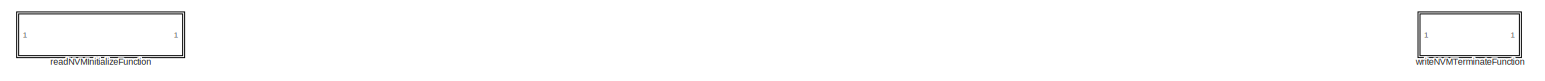
[diagram: root canvas - part 1/4, full width, top band]
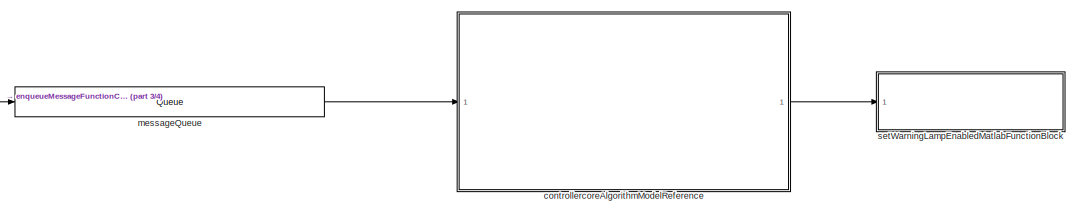
[diagram: root canvas - part 2/4, middle right region]
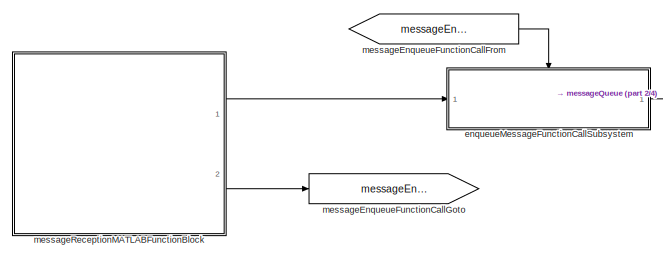
[diagram: root canvas - part 3/4, middle left region]
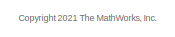
[diagram: root canvas - part 4/4, bottom center region]
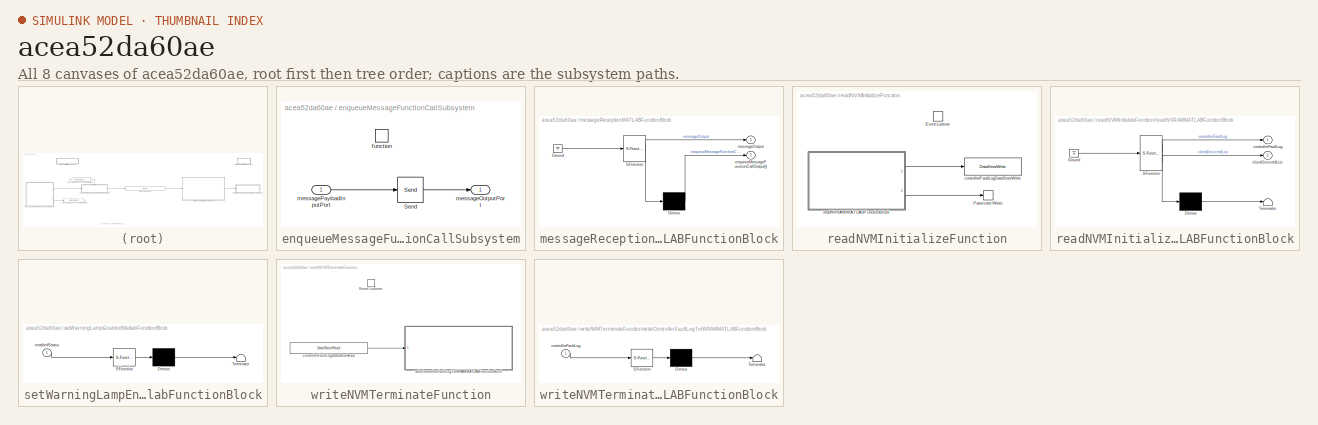
[diagram: thumbnail index - all 8 canvases of the model, root first then tree order]
MODEL slx_acea52da60ae
KIND model
WORKSPACE source: mxarray member
WORKSPACE CONTROLLER_CLIENT_DEVICE_ID_LIST_NVM_ADDRESS_AS_UINT32: Simulink.Parameter (value not decoded)
WORKSPACE CONTROLLER_FAULT_LOG_NVM_ADDRESS_AS_UINT32: Simulink.Parameter (value not decoded)
BLOCK [ModelReference] controllercoreAlgorithmModelReference
  InputPortMessageModes = m
  ModelNameDialog = controllerCoreAlgorithm
  ModelReferenceVersion = 4.0
  Ports = [1, 1]
  UsingDefaultArgumentValue = 0
BLOCK [SubSystem] enqueueMessageFunctionCallSubsystem
  Ports = [1, 1, 0, 1]
  RequestExecContextInheritance = off
  TreatAsAtomicUnit = on
BLOCK [Send] enqueueMessageFunctionCallSubsystem/Send
  InputPortMap = u1
  OutputPortMessageModes = m
  Ports = [1, 1]
BLOCK [TriggerPort] enqueueMessageFunctionCallSubsystem/function
  Ports = []
  StatesWhenEnabling = held
  TriggerType = function-call
  VariantControl = (inherit)
BLOCK [Outport] enqueueMessageFunctionCallSubsystem/messageOutputPort
BLOCK [Inport] enqueueMessageFunctionCallSubsystem/messagePayloadInputPort
BLOCK [From] messageEnqueueFunctionCallFrom
  GotoTag = messageEnqueueFunctionCall
BLOCK [Goto] messageEnqueueFunctionCallGoto
  GotoTag = messageEnqueueFunctionCall
BLOCK [Queue] messageQueue
  Capacity = PER_STEP_MAXIMUM_MESSAGES_TO_PROCESS
  InputPortMap = u0
  InputPortMessageModes = m
  OutputPortMap = o5
  OutputPortMessageModes = m
  OverwriteOldest = on
  Ports = [1, 1]
  QueueType = LIFO
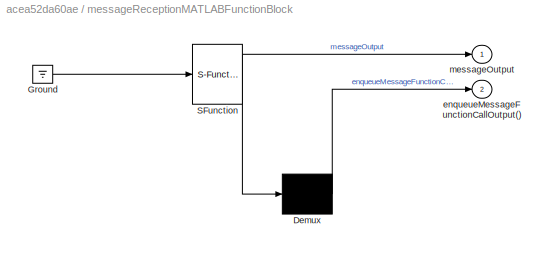
BLOCK [SubSystem] messageReceptionMATLABFunctionBlock
  ErrorFcn = Stateflow.Translate.translate
  PermitHierarchicalResolution = ExplicitOnly
  Ports = [0, 2]
  RequestExecContextInheritance = off
  SFBlockType = MATLAB Function
  TreatAsAtomicUnit = on
BLOCK [Demux] messageReceptionMATLABFunctionBlock/ Demux 
  Outputs = 1
  Ports = [1, 1]
BLOCK [Ground] messageReceptionMATLABFunctionBlock/ Ground 
BLOCK [S-Function] messageReceptionMATLABFunctionBlock/ SFunction 
  EnableBusSupport = off
  FunctionName = sf_sfun
  Parameters = DEFAULT_MEASUREMENT_MSG_BUS_TYPE,PER_STEP_MAXIMUM_MESSAGES_TO_PROCESS
  PortCounts = [1 2]
  Ports = [1, 2]
  SFcnIsStateOwnerBlock = off
  SFunctionDeploymentMode = off
  Tag = Stateflow S-Function 5
BLOCK [Outport] messageReceptionMATLABFunctionBlock/enqueueMessageFunctionCallOutput()
  Port = 2
BLOCK [Outport] messageReceptionMATLABFunctionBlock/messageOutput
BLOCK [SubSystem] readNVMInitializeFunction
  Ports = []
  RequestExecContextInheritance = off
  TreatAsAtomicUnit = on
BLOCK [EventListener] readNVMInitializeFunction/Event Listener
  DisableCoverage = on
  EventName = reset
BLOCK [ParameterWriter] readNVMInitializeFunction/Parameter Writer
  ParameterInternalName = CLIENT_DEVICE_ID_LIST
  ParameterName = CLIENT_DEVICE_ID_LIST
  ParameterOwnerBlock = ../../controllercoreAlgorithmModelReference
BLOCK [DataStoreWrite] readNVMInitializeFunction/controllerFaultLogDataStoreWrite
  DataStoreName = controller_fault_log
  IndexOptions = Index vector (dialog)
  Indices = 1
  OutputSizes = 1
  Ports = [1]
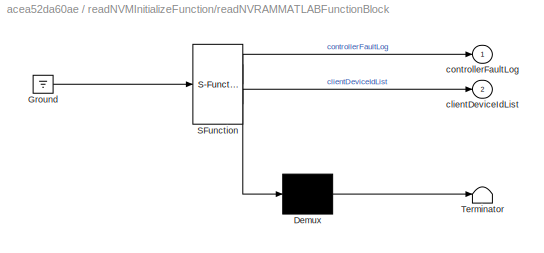
BLOCK [SubSystem] readNVMInitializeFunction/readNVRAMMATLABFunctionBlock
  ErrorFcn = Stateflow.Translate.translate
  PermitHierarchicalResolution = ExplicitOnly
  Ports = [0, 2]
  RequestExecContextInheritance = off
  SFBlockType = MATLAB Function
  TreatAsAtomicUnit = on
BLOCK [Demux] readNVMInitializeFunction/readNVRAMMATLABFunctionBlock/ Demux 
  Outputs = 1
  Ports = [1, 1]
BLOCK [Ground] readNVMInitializeFunction/readNVRAMMATLABFunctionBlock/ Ground 
BLOCK [S-Function] readNVMInitializeFunction/readNVRAMMATLABFunctionBlock/ SFunction 
  EnableBusSupport = off
  FunctionName = sf_sfun
  Parameters = CONTROLLER_CLIENT_DEVICE_ID_LIST_NVM_ADDRESS_AS_UINT32,CONTROLLER_FAULT_LOG_NVM_ADDRESS_AS_UINT32,DEFAULT_CLIENT_DEVICE_ID_LIST
  PortCounts = [1 3]
  Ports = [1, 3]
  SFcnIsStateOwnerBlock = off
  SFunctionDeploymentMode = off
  Tag = Stateflow S-Function 2
BLOCK [Terminator] readNVMInitializeFunction/readNVRAMMATLABFunctionBlock/ Terminator 
BLOCK [Outport] readNVMInitializeFunction/readNVRAMMATLABFunctionBlock/clientDeviceIdList
  Port = 2
BLOCK [Outport] readNVMInitializeFunction/readNVRAMMATLABFunctionBlock/controllerFaultLog
BLOCK [SubSystem] setWarningLampEnabledMatlabFunctionBlock
  ErrorFcn = Stateflow.Translate.translate
  PermitHierarchicalResolution = ExplicitOnly
  Ports = [1]
  RequestExecContextInheritance = off
  SFBlockType = MATLAB Function
  TreatAsAtomicUnit = on
BLOCK [Demux] setWarningLampEnabledMatlabFunctionBlock/ Demux 
  Outputs = 1
  Ports = [1, 1]
BLOCK [S-Function] setWarningLampEnabledMatlabFunctionBlock/ SFunction 
  EnableBusSupport = off
  FunctionName = sf_sfun
  PortCounts = [1 1]
  Ports = [1, 1]
  SFcnIsStateOwnerBlock = off
  SFunctionDeploymentMode = off
  Tag = Stateflow S-Function 4
BLOCK [Terminator] setWarningLampEnabledMatlabFunctionBlock/ Terminator 
BLOCK [Inport] setWarningLampEnabledMatlabFunctionBlock/enabledStatus
BLOCK [SubSystem] writeNVMTerminateFunction
  Ports = []
  RequestExecContextInheritance = off
  TreatAsAtomicUnit = on
BLOCK [EventListener] writeNVMTerminateFunction/Event Listener
  DisableCoverage = on
  EventName = reset
  EventType = Terminate
BLOCK [DataStoreRead] writeNVMTerminateFunction/controllerFaultLogDataStoreRead
  DataStoreName = controller_fault_log
  IndexOptions = Index vector (dialog)
  Indices = 1
  OutputSizes = 1
  Ports = [0, 1]
BLOCK [SubSystem] writeNVMTerminateFunction/writeControllerFaultLogToNVRAMMATLABFunctionBlock
  ErrorFcn = Stateflow.Translate.translate
  PermitHierarchicalResolution = ExplicitOnly
  Ports = [1]
  RequestExecContextInheritance = off
  SFBlockType = MATLAB Function
  TreatAsAtomicUnit = on
BLOCK [Demux] writeNVMTerminateFunction/writeControllerFaultLogToNVRAMMATLABFunctionBlock/ Demux 
  Outputs = 1
  Ports = [1, 1]
BLOCK [S-Function] writeNVMTerminateFunction/writeControllerFaultLogToNVRAMMATLABFunctionBlock/ SFunction 
  EnableBusSupport = off
  FunctionName = sf_sfun
  Parameters = CONTROLLER_FAULT_LOG_NVM_ADDRESS_AS_UINT32
  PortCounts = [1 1]
  Ports = [1, 1]
  SFcnIsStateOwnerBlock = off
  SFunctionDeploymentMode = off
  Tag = Stateflow S-Function 3
BLOCK [Terminator] writeNVMTerminateFunction/writeControllerFaultLogToNVRAMMATLABFunctionBlock/ Terminator 
BLOCK [Inport] writeNVMTerminateFunction/writeControllerFaultLogToNVRAMMATLABFunctionBlock/controllerFaultLog
ANNOTATION (root): <copyright redacted>
LINE controllercoreAlgorithmModelReference:1 -> setWarningLampEnabledMatlabFunctionBlock:1
LINE enqueueMessageFunctionCallSubsystem/Send:1 -> enqueueMessageFunctionCallSubsystem/messageOutputPort:1
LINE enqueueMessageFunctionCallSubsystem/messagePayloadInputPort:1 -> enqueueMessageFunctionCallSubsystem/Send:1
LINE enqueueMessageFunctionCallSubsystem:1 -> messageQueue:1
LINE messageEnqueueFunctionCallFrom:1 -> enqueueMessageFunctionCallSubsystem:trigger
LINE messageQueue:1 -> controllercoreAlgorithmModelReference:1
LINE messageReceptionMATLABFunctionBlock:1 -> enqueueMessageFunctionCallSubsystem:1
LINE messageReceptionMATLABFunctionBlock:2 -> messageEnqueueFunctionCallGoto:1
LINE readNVMInitializeFunction/readNVRAMMATLABFunctionBlock:1 -> readNVMInitializeFunction/controllerFaultLogDataStoreWrite:1
LINE readNVMInitializeFunction/readNVRAMMATLABFunctionBlock:2 -> readNVMInitializeFunction/Parameter Writer:1
LINE writeNVMTerminateFunction/controllerFaultLogDataStoreRead:1 -> writeNVMTerminateFunction/writeControllerFaultLogToNVRAMMATLABFunctionBlock:1
CHART readNVMInitializeFunction/readNVRAMMATLABFunctionBlock states=1 transitions=1
  STATE_LABEL 'eML_blk_kernel()'
  STATE_LABEL "SCRIPT:\nfunction [ controllerFaultLog, clientDeviceIdList ] = readNVRAMMATLABFunction( CONTROLLER_CLIENT_DEVICE_ID_LIST_NVM_ADDRESS_AS_UINT32, CONTROLLER_FAULT_LOG_NVM_ADDRESS_AS_UINT32, DEFAULT_CLIENT_DEVICE_ID_LIST )\n\ncoder.extrinsic( 'warning' );\n\ncontrollerFaultLog = ...\n    repmat( controllerFaultLogEntryBusTypeDefaultConstructor( ), 10, 1 );\n\nclientDeviceIdList = DEFAULT_CLIENT_DEVICE_ID_LIS...<+472ch>"
CHART writeNVMTerminateFunction/writeControllerFaultLogToNVRAMMATLABFunctionBlock states=1 transitions=1
  STATE_LABEL 'eML_blk_kernel()'
  STATE_LABEL "SCRIPT:\nfunction  writeControllerFaultLogToNVRAMMATLABFunction(CONTROLLER_FAULT_LOG_NVM_ADDRESS_AS_UINT32, controllerFaultLog)\n\ncoder.extrinsic( 'warning' );\n\nif( coder.target( 'Rtw' ) )\n\n    ControllerTargetSpecificCodeExternalDependency.nvmWriteMatlabWrapper( CONTROLLER_FAULT_LOG_NVM_ADDRESS_AS_UINT32, controllerFaultLog );\n\nelse\n    warning( 'This block is only used for code-generation.' );\nend...<+14ch>"
CHART setWarningLampEnabledMatlabFunctionBlock states=1 transitions=1
  STATE_LABEL 'eML_blk_kernel()'
  STATE_LABEL "SCRIPT:\nfunction setWarningLampEnabledMatlabFunction( enabledStatus )\n\ncoder.extrinsic( 'warning' );\n\nif( coder.target( 'Rtw' ) )\n\n    ControllerTargetSpecificCodeExternalDependency.setWarningLampEnabledMatlabWrapper( enabledStatus );\n\nelse\n    warning( 'This block is only used for code-generation.' );\nend\n\nreturn;\nend\n"
CHART messageReceptionMATLABFunctionBlock states=1 transitions=1
  STATE_LABEL 'eML_blk_kernel()'
  STATE_LABEL "SCRIPT:\n function messageOutput   = messageReceptionMATLABFunction( DEFAULT_MEASUREMENT_MSG_BUS_TYPE, PER_STEP_MAXIMUM_MESSAGES_TO_PROCESS )\n\ncoder.extrinsic( 'warning' );\n\nmessageOutput = DEFAULT_MEASUREMENT_MSG_BUS_TYPE;\n\nif( coder.target( 'Rtw' ) )\n\n    for processedMessageQuantity = 1 : PER_STEP_MAXIMUM_MESSAGES_TO_PROCESS\n\n        messageOutput = measurementMsgBusTypeDefaultConstructor( );\n\n ...<+987ch>"
CHART  states=0 transitions=0
CHART  states=0 transitions=0
CHART  states=0 transitions=0
CHART  states=0 transitions=0
